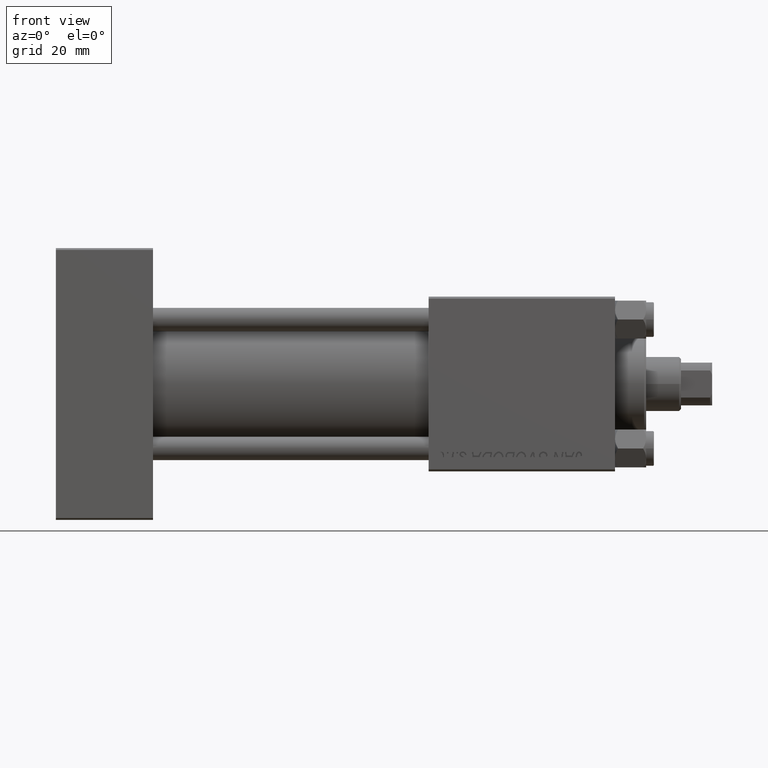
[diagram: clean part render]
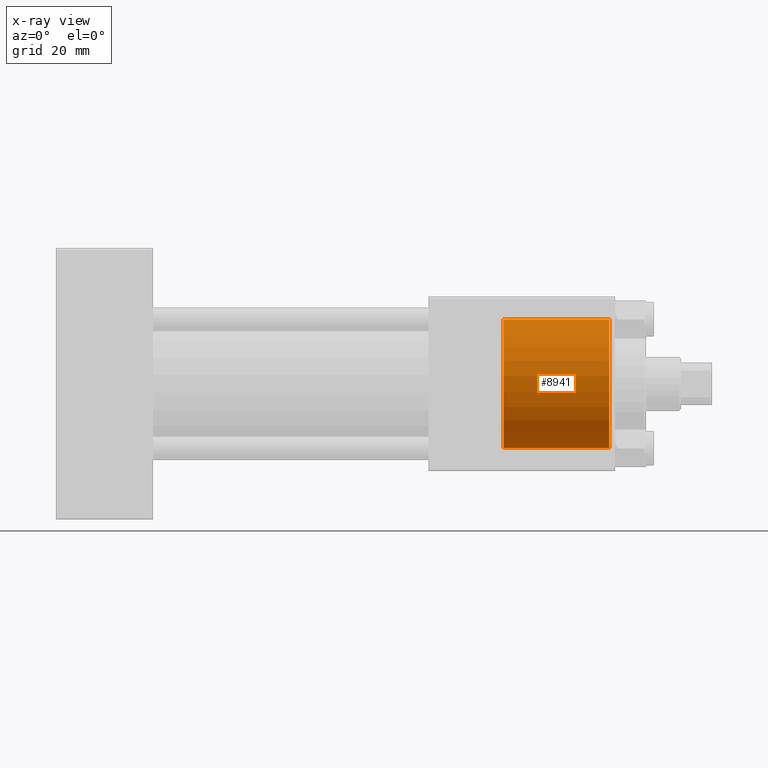
[diagram: x-ray — body ghosted, one internal face saturated and labeled with its STEP entity id]
A machine part, front view, then the same camera in x-ray: the body is ghosted and one INTERNAL B-rep face — a face not visible from any outside direction — is saturated and labeled: STEP entity #8941.
In plain terms, the highlighted cylindrical surface (partial cylindrical patch) has radius 16.5 mm, axis along (1, 0, 0).
Its self-contained STEP definition (entity closure, byte-faithful):
#781 = EDGE_CURVE ( 'NONE', #5908, #23201, #36849, .T. ) ;
#1189 = EDGE_CURVE ( 'NONE', #23201, #35918, #37051, .T. ) ;
#1276 = DIRECTION ( 'NONE',  ( 1.000000000000000000, -0.000000000000000000, -0.000000000000000000 ) ) ;
#4263 = LINE ( 'NONE', #20180, #28370 ) ;
#5205 = CARTESIAN_POINT ( 'NONE',  ( 142.5000000000000284, 0.000000000000000000, 0.000000000000000000 ) ) ;
#5735 = CIRCLE ( 'NONE', #8166, 16.50000000000000000 ) ;
#5908 = VERTEX_POINT ( 'NONE', #29048 ) ;
#8166 = AXIS2_PLACEMENT_3D ( 'NONE', #8652, #35643, #15987 ) ;
#8558 = FACE_OUTER_BOUND ( 'NONE', #49644, .T. ) ;
#8652 = CARTESIAN_POINT ( 'NONE',  ( 115.3000000000000114, 0.000000000000000000, 0.000000000000000000 ) ) ;
#8793 = DIRECTION ( 'NONE',  ( 0.000000000000000000, 0.000000000000000000, -1.000000000000000000 ) ) ;
#8941 = ADVANCED_FACE ( 'NONE', ( #8558 ), #23951, .F. ) ;
#10979 = EDGE_CURVE ( 'NONE', #39095, #35918, #4263, .T. ) ;
#12583 = CARTESIAN_POINT ( 'NONE',  ( 115.3000000000000114, 0.000000000000000000, 0.000000000000000000 ) ) ;
#13415 = CARTESIAN_POINT ( 'NONE',  ( 115.3000000000000114, 2.020667218593133100E-15, 16.50000000000000000 ) ) ;
#15987 = DIRECTION ( 'NONE',  ( 0.000000000000000000, 0.000000000000000000, -1.000000000000000000 ) ) ;
#20129 = ORIENTED_EDGE ( 'NONE', *, *, #781, .T. ) ;
#20180 = CARTESIAN_POINT ( 'NONE',  ( 115.3000000000000114, 0.000000000000000000, -16.50000000000000000 ) ) ;
#20284 = AXIS2_PLACEMENT_3D ( 'NONE', #12583, #27976, #8793 ) ;
#22818 = ORIENTED_EDGE ( 'NONE', *, *, #1189, .T. ) ;
#23201 = VERTEX_POINT ( 'NONE', #24431 ) ;
#23951 = CYLINDRICAL_SURFACE ( 'NONE', #20284, 16.50000000000000000 ) ;
#24431 = CARTESIAN_POINT ( 'NONE',  ( 142.5000000000000284, 2.020667218593133100E-15, 16.50000000000000000 ) ) ;
#25238 = CARTESIAN_POINT ( 'NONE',  ( 142.5000000000000284, 0.000000000000000000, -16.50000000000000000 ) ) ;
#26266 = EDGE_CURVE ( 'NONE', #5908, #39095, #5735, .T. ) ;
#27976 = DIRECTION ( 'NONE',  ( 1.000000000000000000, -0.000000000000000000, -0.000000000000000000 ) ) ;
#28370 = VECTOR ( 'NONE', #31534, 1000.000000000000000 ) ;
#29048 = CARTESIAN_POINT ( 'NONE',  ( 115.3000000000000114, 2.020667218593133100E-15, 16.50000000000000000 ) ) ;
#31408 = AXIS2_PLACEMENT_3D ( 'NONE', #5205, #46471, #38356 ) ;
#31534 = DIRECTION ( 'NONE',  ( 1.000000000000000000, -0.000000000000000000, -0.000000000000000000 ) ) ;
#33995 = ORIENTED_EDGE ( 'NONE', *, *, #10979, .F. ) ;
#35034 = CARTESIAN_POINT ( 'NONE',  ( 115.3000000000000114, 0.000000000000000000, -16.50000000000000000 ) ) ;
#35643 = DIRECTION ( 'NONE',  ( 1.000000000000000000, 0.000000000000000000, 0.000000000000000000 ) ) ;
#35918 = VERTEX_POINT ( 'NONE', #25238 ) ;
#36849 = LINE ( 'NONE', #13415, #48362 ) ;
#37051 = CIRCLE ( 'NONE', #31408, 16.50000000000000000 ) ;
#38356 = DIRECTION ( 'NONE',  ( 0.000000000000000000, 0.000000000000000000, 1.000000000000000000 ) ) ;
#39095 = VERTEX_POINT ( 'NONE', #35034 ) ;
#45104 = ORIENTED_EDGE ( 'NONE', *, *, #26266, .F. ) ;
#46471 = DIRECTION ( 'NONE',  ( 1.000000000000000000, 0.000000000000000000, 0.000000000000000000 ) ) ;
#48362 = VECTOR ( 'NONE', #1276, 1000.000000000000000 ) ;
#49644 = EDGE_LOOP ( 'NONE', ( #45104, #20129, #22818, #33995 ) ) ;